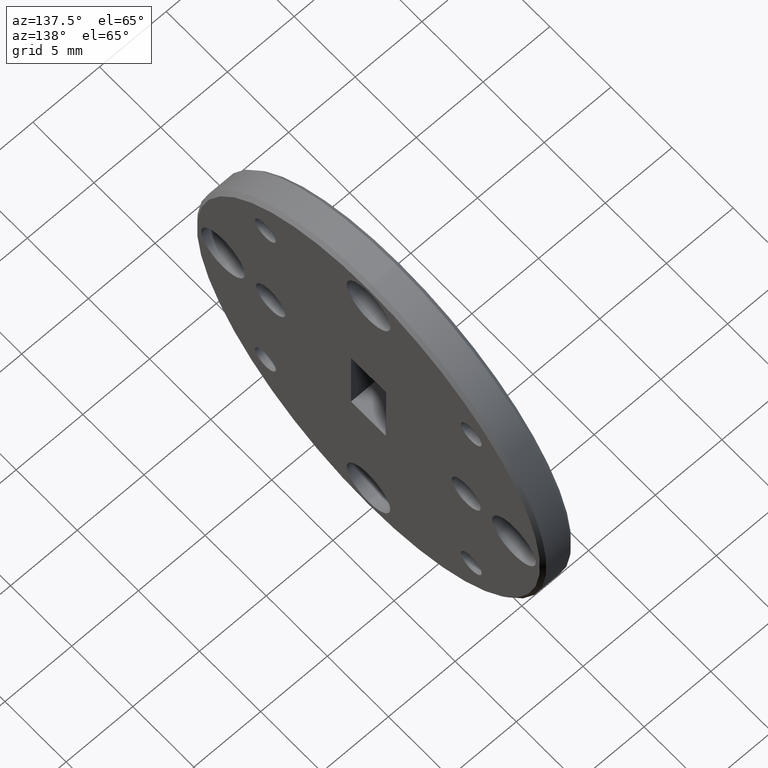
[diagram: clean part render]
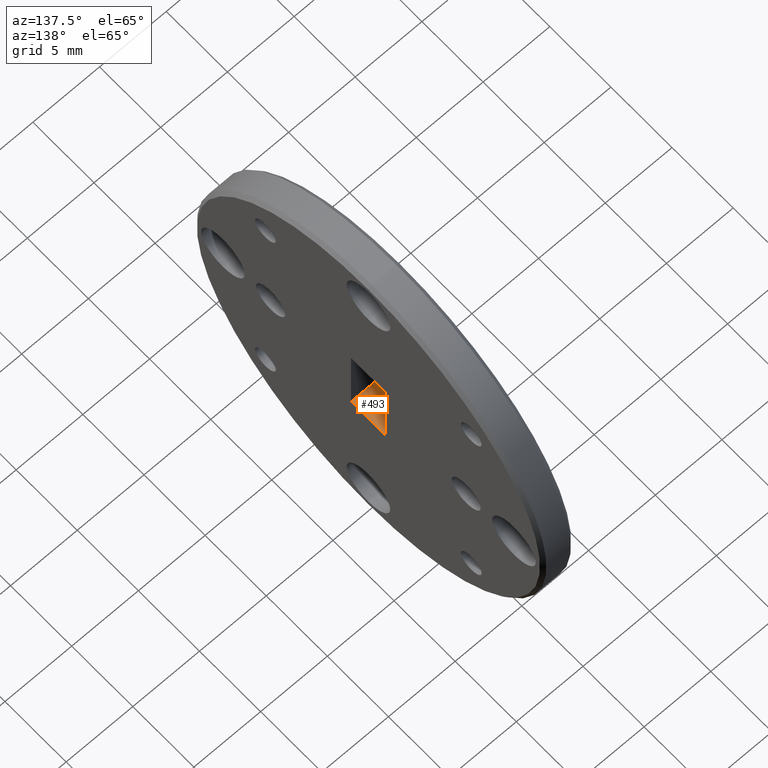
[diagram: same view with one face highlighted and labeled with its STEP entity id]
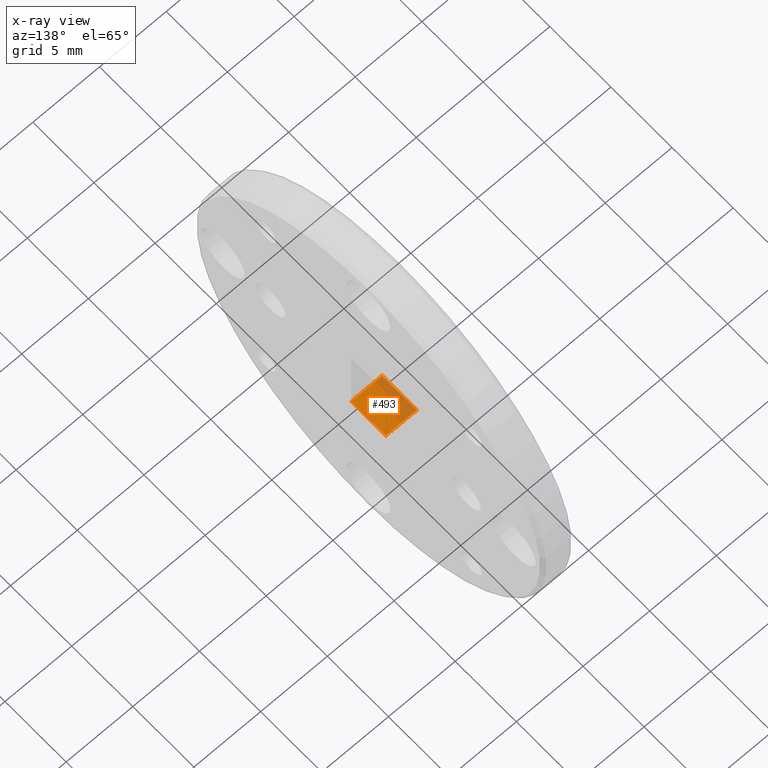
[diagram: x-ray of the same camera — body ghosted, the highlighted face saturated]
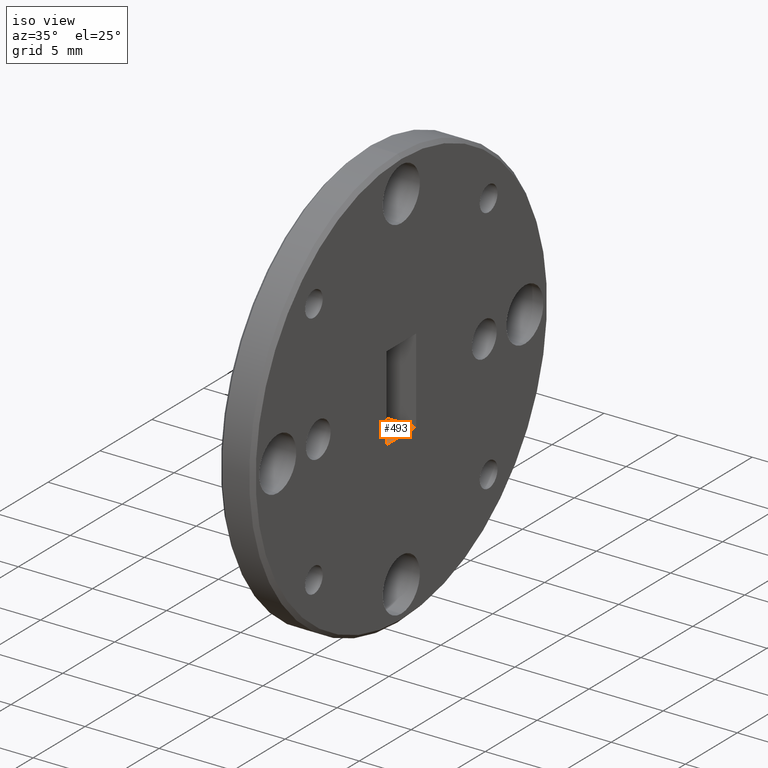
[diagram: same view with one face highlighted and labeled with its STEP entity id]
A machine part, auxiliary view. The second image highlights one B-rep face of the part: STEP entity #493.
The next image is the same camera in x-ray: the body ghosted, the highlighted face saturated — about 37% of this face is hidden behind the body in this view.
A second angle (iso view) of the same face is appended — the face is thin or edge-on in the first view.
In plain terms, the highlighted planar face has unit normal (0, 0, -1).
Its self-contained STEP definition (entity closure, byte-faithful):
#2 = VERTEX_POINT ( 'NONE', #1045 ) ;
#5 = LINE ( 'NONE', #803, #641 ) ;
#20 = DIRECTION ( 'NONE',  ( -1.000000000000000000, -0.0000000000000000000, -0.0000000000000000000 ) ) ;
#101 = CARTESIAN_POINT ( 'NONE',  ( 0.09200000000000004000, -0.05600000000000000800, -0.1119999999999999700 ) ) ;
#172 = VERTEX_POINT ( 'NONE', #710 ) ;
#310 = EDGE_CURVE ( 'NONE', #538, #172, #1054, .T. ) ;
#314 = ORIENTED_EDGE ( 'NONE', *, *, #1140, .F. ) ;
#363 = CARTESIAN_POINT ( 'NONE',  ( 0.09200000000000004000, -0.05600000000000000800, -0.1119999999999999700 ) ) ;
#440 = ORIENTED_EDGE ( 'NONE', *, *, #902, .T. ) ;
#452 = ORIENTED_EDGE ( 'NONE', *, *, #1080, .T. ) ;
#456 = LINE ( 'NONE', #363, #1086 ) ;
#478 = DIRECTION ( 'NONE',  ( 0.0000000000000000000, 0.0000000000000000000, -1.000000000000000000 ) ) ;
#493 = ADVANCED_FACE ( 'NONE', ( #541 ), #666, .F. ) ;
#538 = VERTEX_POINT ( 'NONE', #844 ) ;
#541 = FACE_OUTER_BOUND ( 'NONE', #561, .T. ) ;
#561 = EDGE_LOOP ( 'NONE', ( #452, #585, #314, #440 ) ) ;
#571 = DIRECTION ( 'NONE',  ( -1.000000000000000000, 0.0000000000000000000, -0.0000000000000000000 ) ) ;
#585 = ORIENTED_EDGE ( 'NONE', *, *, #310, .F. ) ;
#589 = VECTOR ( 'NONE', #20, 39.37007874015748100 ) ;
#636 = AXIS2_PLACEMENT_3D ( 'NONE', #1095, #478, #571 ) ;
#641 = VECTOR ( 'NONE', #715, 39.37007874015748100 ) ;
#666 = PLANE ( 'NONE',  #636 ) ;
#670 = VERTEX_POINT ( 'NONE', #818 ) ;
#710 = CARTESIAN_POINT ( 'NONE',  ( -0.0000000000000000000, -0.05600000000000000800, -0.1119999999999999700 ) ) ;
#715 = DIRECTION ( 'NONE',  ( -0.0000000000000000000, -1.000000000000000000, -0.0000000000000000000 ) ) ;
#803 = CARTESIAN_POINT ( 'NONE',  ( -0.0000000000000000000, -0.05600000000000000800, -0.1119999999999999700 ) ) ;
#809 = DIRECTION ( 'NONE',  ( -0.0000000000000000000, -1.000000000000000000, -0.0000000000000000000 ) ) ;
#818 = CARTESIAN_POINT ( 'NONE',  ( 0.09200000000000004000, 0.05600000000000002900, -0.1119999999999999700 ) ) ;
#827 = LINE ( 'NONE', #1024, #841 ) ;
#841 = VECTOR ( 'NONE', #854, 39.37007874015748100 ) ;
#844 = CARTESIAN_POINT ( 'NONE',  ( 0.09200000000000004000, -0.05600000000000000800, -0.1119999999999999700 ) ) ;
#854 = DIRECTION ( 'NONE',  ( -1.000000000000000000, -0.0000000000000000000, -0.0000000000000000000 ) ) ;
#902 = EDGE_CURVE ( 'NONE', #670, #2, #827, .T. ) ;
#1024 = CARTESIAN_POINT ( 'NONE',  ( 0.09200000000000004000, 0.05600000000000000800, -0.1119999999999999700 ) ) ;
#1045 = CARTESIAN_POINT ( 'NONE',  ( 0.0000000000000000000, 0.05600000000000000800, -0.1119999999999999700 ) ) ;
#1054 = LINE ( 'NONE', #101, #589 ) ;
#1080 = EDGE_CURVE ( 'NONE', #2, #172, #5, .T. ) ;
#1086 = VECTOR ( 'NONE', #809, 39.37007874015748100 ) ;
#1095 = CARTESIAN_POINT ( 'NONE',  ( 0.09200000000000004000, -0.05600000000000000800, -0.1119999999999999700 ) ) ;
#1140 = EDGE_CURVE ( 'NONE', #670, #538, #456, .T. ) ;